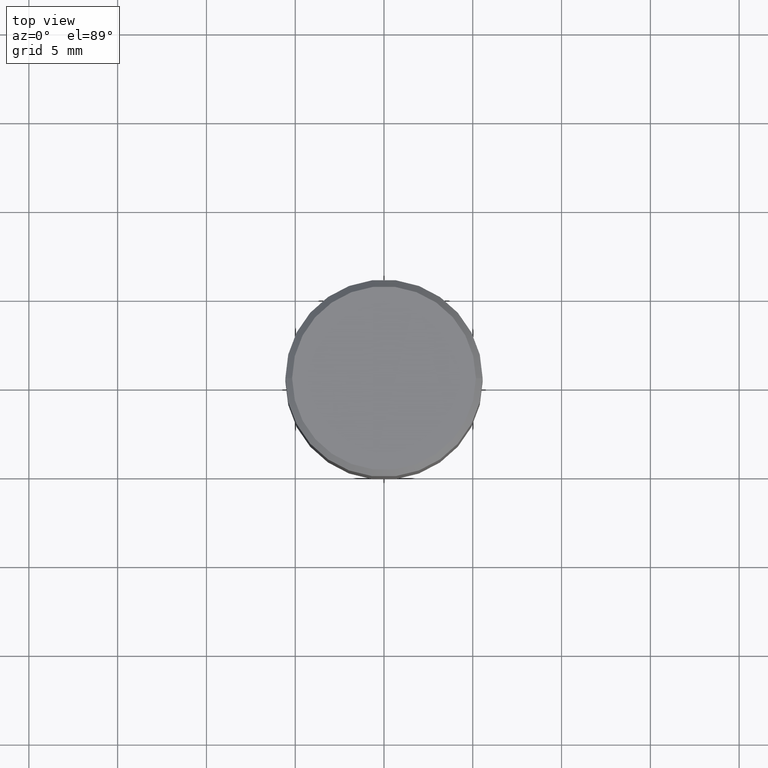
[diagram: clean part render]
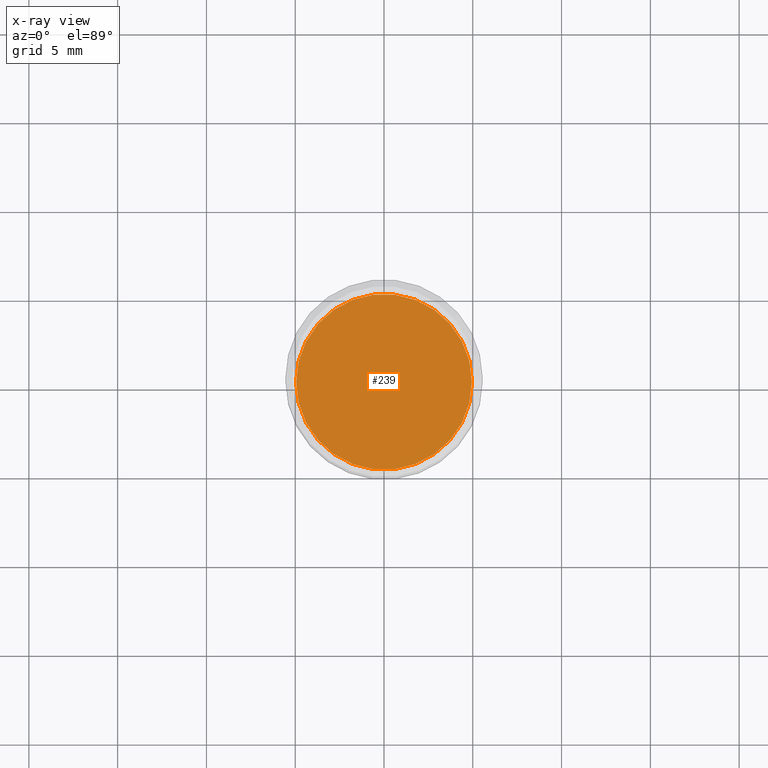
[diagram: x-ray — body ghosted, one internal face saturated and labeled with its STEP entity id]
A machine part, top view, then the same camera in x-ray: the body is ghosted and one INTERNAL B-rep face — a face not visible from any outside direction — is saturated and labeled: STEP entity #239.
In plain terms, the highlighted planar face has unit normal (-0, 0, 1).
Its self-contained STEP definition (entity closure, byte-faithful):
#52 = CARTESIAN_POINT ( 'NONE',  ( 1.222734403092568719E-29, -1.745740669421573186E-15, -0.5000000000000001110 ) ) ;
#62 = CIRCLE ( 'NONE', #133, 0.1948000000000000009 ) ;
#80 = DIRECTION ( 'NONE',  ( -2.445468806185136597E-29, 3.491481338843145583E-15, 1.000000000000000000 ) ) ;
#109 = AXIS2_PLACEMENT_3D ( 'NONE', #262, #189, #266 ) ;
#117 = DIRECTION ( 'NONE',  ( -2.445468806185136597E-29, 3.491481338843145583E-15, 1.000000000000000000 ) ) ;
#133 = AXIS2_PLACEMENT_3D ( 'NONE', #52, #80, #182 ) ;
#182 = DIRECTION ( 'NONE',  ( 1.000000000000000000, -6.982962677686267499E-15, 0.000000000000000000 ) ) ;
#183 = CIRCLE ( 'NONE', #461, 0.1948000000000000009 ) ;
#189 = DIRECTION ( 'NONE',  ( -2.438088387897960049E-29, 3.491481338843145188E-15, 1.000000000000000000 ) ) ;
#193 = FACE_OUTER_BOUND ( 'NONE', #277, .T. ) ;
#217 = VERTEX_POINT ( 'NONE', #290 ) ;
#223 = EDGE_CURVE ( 'NONE', #377, #217, #62, .T. ) ;
#239 = ADVANCED_FACE ( 'NONE', ( #193 ), #422, .F. ) ;
#249 = ORIENTED_EDGE ( 'NONE', *, *, #437, .F. ) ;
#262 = CARTESIAN_POINT ( 'NONE',  ( 1.222734403092568719E-29, -1.745740669421573186E-15, -0.5000000000000001110 ) ) ;
#266 = DIRECTION ( 'NONE',  ( 1.000000000000000000, -6.982962677686265922E-15, 4.876176775795935793E-29 ) ) ;
#277 = EDGE_LOOP ( 'NONE', ( #249, #385 ) ) ;
#287 = CARTESIAN_POINT ( 'NONE',  ( 1.222734403092568719E-29, -1.745740669421573186E-15, -0.5000000000000001110 ) ) ;
#290 = CARTESIAN_POINT ( 'NONE',  ( 0.1948000000000000009, -3.106021799034858268E-15, -0.5000000000000001110 ) ) ;
#373 = CARTESIAN_POINT ( 'NONE',  ( -0.1948000000000000009, -3.589541929867870625E-16, -0.5000000000000001110 ) ) ;
#377 = VERTEX_POINT ( 'NONE', #373 ) ;
#385 = ORIENTED_EDGE ( 'NONE', *, *, #223, .F. ) ;
#422 = PLANE ( 'NONE',  #109 ) ;
#437 = EDGE_CURVE ( 'NONE', #217, #377, #183, .T. ) ;
#461 = AXIS2_PLACEMENT_3D ( 'NONE', #287, #117, #466 ) ;
#466 = DIRECTION ( 'NONE',  ( 1.000000000000000000, -6.982962677686267499E-15, 0.000000000000000000 ) ) ;